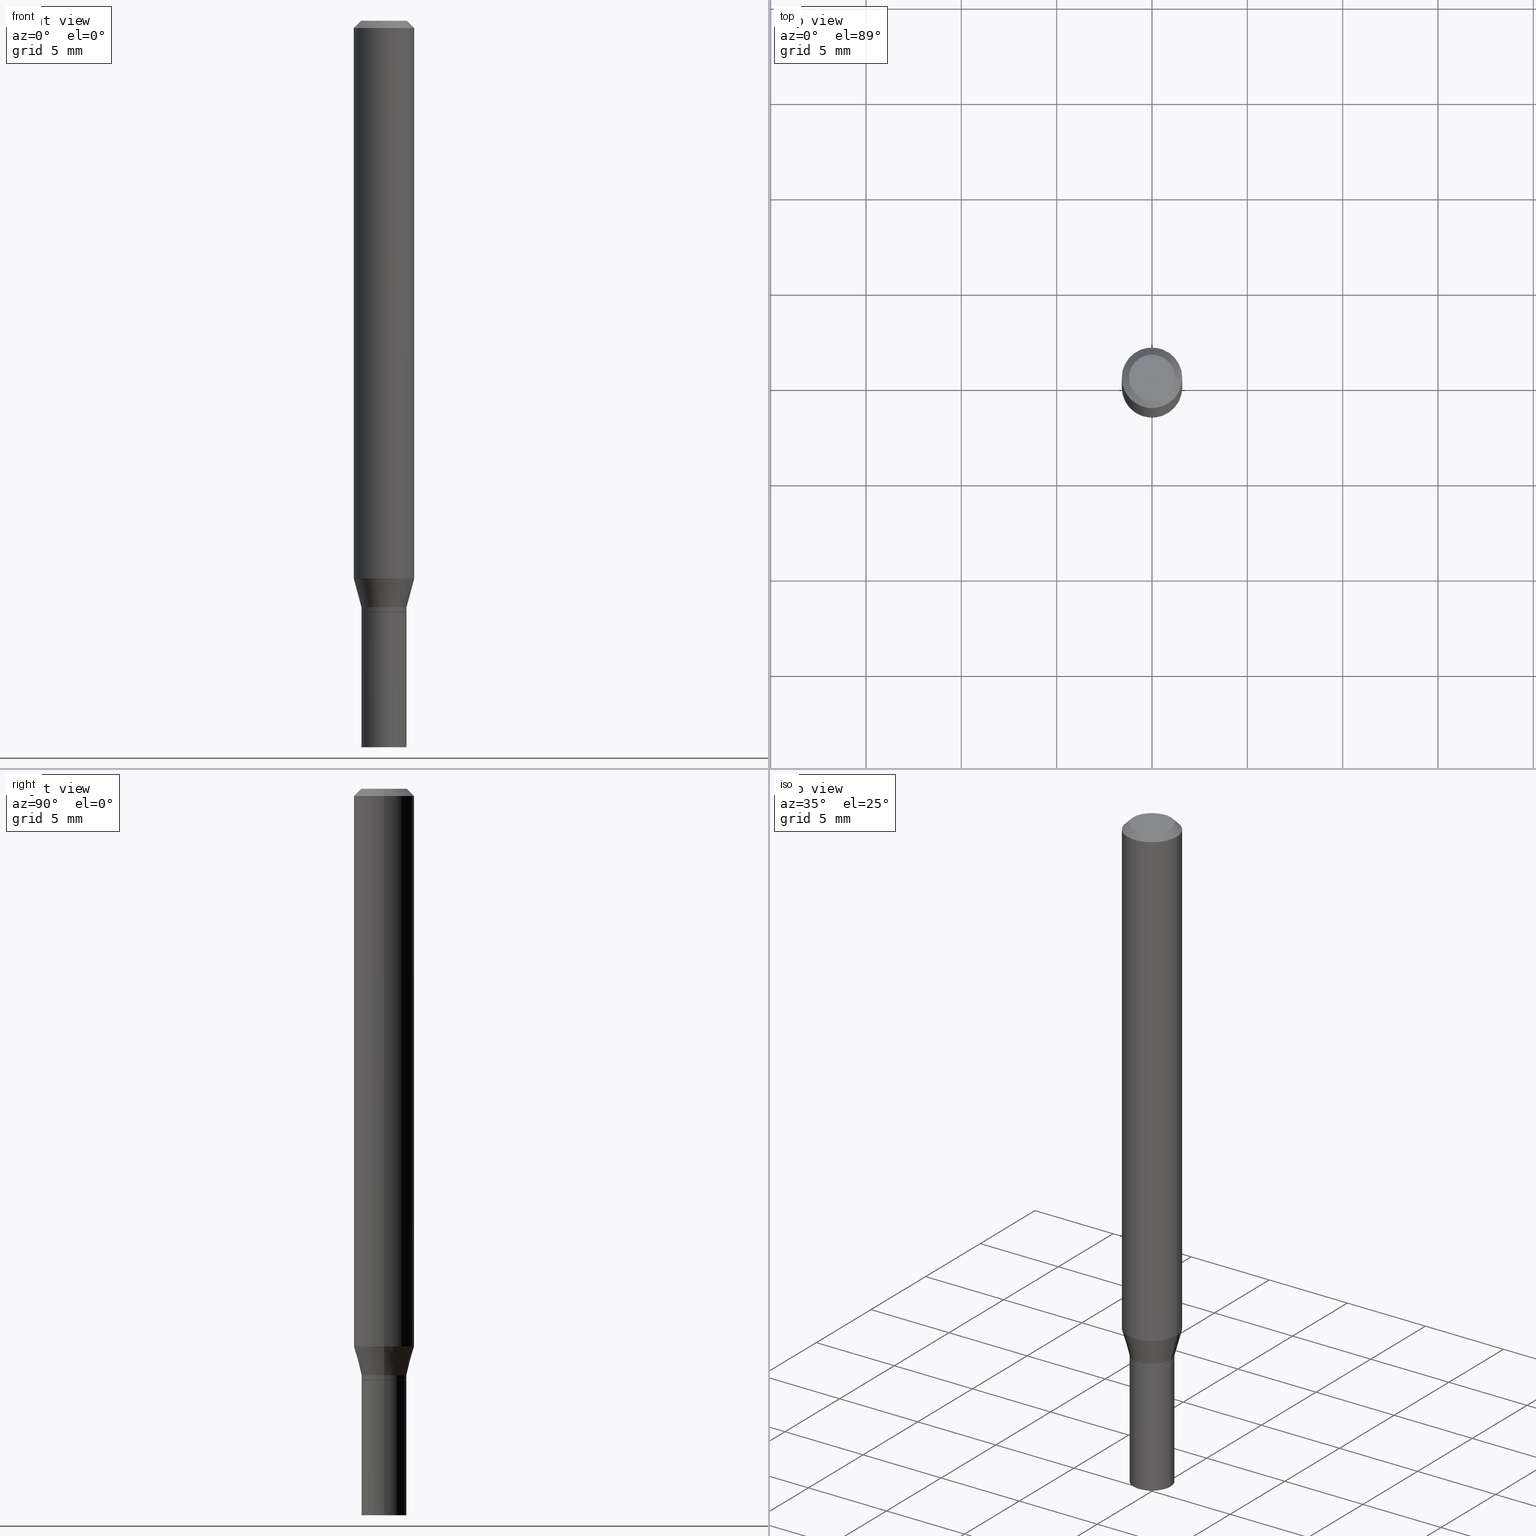
[diagram: canonical four-view strip — front | top / right | iso, engineering-drawing reading convention]
A machine part, canonical four-view strip (front | top / right | iso — engineering-drawing reading convention). The complete STEP part file that produces these views, byte-faithful:
ISO-10303-21;
HEADER;
FILE_DESCRIPTION (( 'STEP AP203' ),
    '1' );
FILE_NAME ('02463.STEP',
    '2024-03-18T20:44:53',
    ( '' ),
    ( '' ),
    'SwSTEP 2.0',
    'SolidWorks 2023',
    '' );
FILE_SCHEMA (( 'CONFIG_CONTROL_DESIGN' ));
ENDSEC;

DATA;
#1 = VERTEX_POINT ( 'NONE', #220 ) ;
#2 = CARTESIAN_POINT ( 'NONE',  ( -0.04649999999999999967, -4.419757989367653263E-15, -1.500000000000000222 ) ) ;
#3 = ORIENTED_EDGE ( 'NONE', *, *, #359, .F. ) ;
#4 = AXIS2_PLACEMENT_3D ( 'NONE', #325, #390, #215 ) ;
#5 = ADVANCED_FACE ( 'NONE', ( #158 ), #366, .T. ) ;
#6 = DIRECTION ( 'NONE',  ( -2.445468806185136597E-29, 3.491481338843145583E-15, 1.000000000000000000 ) ) ;
#7 = VERTEX_POINT ( 'NONE', #57 ) ;
#8 = PRODUCT_DEFINITION_SHAPE ( 'NONE', 'NONE',  #182 ) ;
#9 = DIRECTION ( 'NONE',  ( 1.000000000000000000, -6.982962677686269866E-15, 0.000000000000000000 ) ) ;
#10 = VERTEX_POINT ( 'NONE', #198 ) ;
#11 = ORIENTED_EDGE ( 'NONE', *, *, #346, .T. ) ;
#12 = AXIS2_PLACEMENT_3D ( 'NONE', #166, #412, #452 ) ;
#13 = SHAPE_DEFINITION_REPRESENTATION ( #8, #205 ) ;
#14 = CARTESIAN_POINT ( 'NONE',  ( 2.985917412352052273E-29, -4.263098714727481320E-15, -1.221000000000000085 ) ) ;
#15 = DIRECTION ( 'NONE',  ( 1.000000000000000000, -6.982962677686260400E-15, 0.000000000000000000 ) ) ;
#16 = PERSON_AND_ORGANIZATION ( #453, #50 ) ;
#17 = CARTESIAN_POINT ( 'NONE',  ( 3.247077645124412269E-16, 0.04649999999999573919, -1.221000000000000307 ) ) ;
#18 = EDGE_CURVE ( 'NONE', #288, #465, #244, .T. ) ;
#19 = DATE_AND_TIME ( #316, #67 ) ;
#20 = CARTESIAN_POINT ( 'NONE',  ( 0.04599999999999999922, -4.584314997901049810E-15, -1.221000000000000085 ) ) ;
#21 = DIRECTION ( 'NONE',  ( -2.445468806185136877E-29, 3.491481338843145188E-15, 1.000000000000000000 ) ) ;
#22 = CARTESIAN_POINT ( 'NONE',  ( 3.668203209277704895E-29, -5.237222008264718177E-15, -1.500000000000000222 ) ) ;
#23 = EDGE_CURVE ( 'NONE', #461, #1, #232, .T. ) ;
#24 = AXIS2_PLACEMENT_3D ( 'NONE', #163, #319, #377 ) ;
#25 = AXIS2_PLACEMENT_3D ( 'NONE', #78, #6, #266 ) ;
#26 = PLANE ( 'NONE',  #150 ) ;
#27 = DIRECTION ( 'NONE',  ( 2.438088387897960049E-29, -3.491481338843145188E-15, -1.000000000000000000 ) ) ;
#28 = EDGE_LOOP ( 'NONE', ( #230, #108, #271, #269 ) ) ;
#29 = CARTESIAN_POINT ( 'NONE',  ( -0.04599999999999999922, -3.936249056277835733E-15, -1.221000000000000085 ) ) ;
#30 = DIRECTION ( 'NONE',  ( -2.445468806185136597E-29, 3.491481338843145583E-15, 1.000000000000000000 ) ) ;
#31 = VECTOR ( 'NONE', #275, 39.37007874015748143 ) ;
#32 = VERTEX_POINT ( 'NONE', #279 ) ;
#33 = DIRECTION ( 'NONE',  ( -2.445468806185136877E-29, 3.491481338843145188E-15, 1.000000000000000000 ) ) ;
#34 = ORIENTED_EDGE ( 'NONE', *, *, #245, .F. ) ;
#35 = DIMENSIONAL_EXPONENTS ( 1.000000000000000000, 0.000000000000000000, 0.000000000000000000, 0.000000000000000000, 0.000000000000000000, 0.000000000000000000, 0.000000000000000000 ) ;
#36 = ORIENTED_EDGE ( 'NONE', *, *, #386, .F. ) ;
#37 = EDGE_CURVE ( 'NONE', #259, #157, #126, .T. ) ;
#38 = EDGE_LOOP ( 'NONE', ( #46, #337, #96, #120 ) ) ;
#39 = AXIS2_PLACEMENT_3D ( 'NONE', #143, #384, #295 ) ;
#40 = AXIS2_PLACEMENT_3D ( 'NONE', #287, #68, #213 ) ;
#41 = UNCERTAINTY_MEASURE_WITH_UNIT (LENGTH_MEASURE( 1.000000000000000082E-05 ), #119, 'distance_accuracy_value', 'NONE');
#42 = CARTESIAN_POINT ( 'NONE',  ( -0.04749999999999999362, 3.578768372314211985E-16, 8.673617379884694910E-17 ) ) ;
#43 = EDGE_LOOP ( 'NONE', ( #185, #82 ) ) ;
#44 = EDGE_CURVE ( 'NONE', #396, #7, #315, .T. ) ;
#45 = LINE ( 'NONE', #306, #350 ) ;
#46 = ORIENTED_EDGE ( 'NONE', *, *, #245, .T. ) ;
#47 = DATE_AND_TIME ( #313, #409 ) ;
#48 = ORIENTED_EDGE ( 'NONE', *, *, #221, .T. ) ;
#49 = AXIS2_PLACEMENT_3D ( 'NONE', #253, #180, #66 ) ;
#50 = ORGANIZATION ( 'UNSPECIFIED', 'UNSPECIFIED', '' ) ;
#51 = COORDINATED_UNIVERSAL_TIME_OFFSET ( 5, 0, .BEHIND. ) ;
#52 = FACE_OUTER_BOUND ( 'NONE', #301, .T. ) ;
#53 = DIRECTION ( 'NONE',  ( 0.000000000000000000, 0.000000000000000000, 1.000000000000000000 ) ) ;
#54 = CARTESIAN_POINT ( 'NONE',  ( 0.04649999999999999967, -3.247077645124114474E-16, 2.267422200745110326E-30 ) ) ;
#55 = ADVANCED_FACE ( 'NONE', ( #443 ), #463, .T. ) ;
#56 = PERSON_AND_ORGANIZATION ( #453, #50 ) ;
#57 = CARTESIAN_POINT ( 'NONE',  ( -0.06250000000000000000, -1.591945764858856353E-15, -0.01499999999999999944 ) ) ;
#58 = CONICAL_SURFACE ( 'NONE', #39, 0.06250000000000000000, 0.7853981633974456145 ) ;
#59 = SECURITY_CLASSIFICATION ( '', '', #404 ) ;
#60 = DIRECTION ( 'NONE',  ( -2.445468806185136597E-29, 3.491481338843145583E-15, 1.000000000000000000 ) ) ;
#61 = EDGE_CURVE ( 'NONE', #10, #303, #437, .T. ) ;
#62 = CARTESIAN_POINT ( 'NONE',  ( 0.000000000000000000, 0.000000000000000000, 0.000000000000000000 ) ) ;
#63 = CARTESIAN_POINT ( 'NONE',  ( 2.961462724290200728E-29, -4.228183901339049671E-15, -1.211000000000000076 ) ) ;
#64 = ORIENTED_EDGE ( 'NONE', *, *, #386, .T. ) ;
#65 = CIRCLE ( 'NONE', #343, 0.06250000000000000000 ) ;
#66 = DIRECTION ( 'NONE',  ( 1.000000000000000000, -6.982962677686267499E-15, 4.876176775795936353E-29 ) ) ;
#67 = LOCAL_TIME ( 16, 44, 53.00000000000000000, #309 ) ;
#68 = DIRECTION ( 'NONE',  ( -2.445468806185136597E-29, 3.491481338843145583E-15, 1.000000000000000000 ) ) ;
#69 = DIRECTION ( 'NONE',  ( 0.7071067811865454633, -7.319954787623246579E-15, -0.7071067811865493491 ) ) ;
#70 = LINE ( 'NONE', #397, #181 ) ;
#71 = CLOSED_SHELL ( 'NONE', ( #284, #194, #5, #189 ) ) ;
#72 = CIRCLE ( 'NONE', #12, 0.06250000000000000000 ) ;
#73 = EDGE_CURVE ( 'NONE', #430, #428, #265, .T. ) ;
#74 = CARTESIAN_POINT ( 'NONE',  ( -0.04649999999999999967, 3.304023721284465841E-16, -2.287304816968531530E-30 ) ) ;
#75 = ORIENTED_EDGE ( 'NONE', *, *, #260, .T. ) ;
#76 = CARTESIAN_POINT ( 'NONE',  ( 0.04599999999999999922, -4.584314997901049810E-15, -1.221000000000000085 ) ) ;
#77 = ORIENTED_EDGE ( 'NONE', *, *, #37, .F. ) ;
#78 = CARTESIAN_POINT ( 'NONE',  ( 2.985917412352052273E-29, -4.263098714727481320E-15, -1.221000000000000085 ) ) ;
#79 = ORIENTED_EDGE ( 'NONE', *, *, #23, .F. ) ;
#80 = ORIENTED_EDGE ( 'NONE', *, *, #86, .T. ) ;
#81 = APPROVAL_ROLE ( '' ) ;
#82 = ORIENTED_EDGE ( 'NONE', *, *, #312, .F. ) ;
#83 = DATE_AND_TIME ( #407, #424 ) ;
#84 = DIRECTION ( 'NONE',  ( -2.445468806185136597E-29, 3.491481338843145583E-15, 1.000000000000000000 ) ) ;
#85 = DATE_AND_TIME ( #342, #109 ) ;
#86 = EDGE_CURVE ( 'NONE', #465, #178, #250, .T. ) ;
#87 = CARTESIAN_POINT ( 'NONE',  ( 2.815436902962077376E-29, -4.019697729335190464E-15, -1.151287187078898322 ) ) ;
#88 = APPLICATION_PROTOCOL_DEFINITION ( 'international standard', 'config_control_design', 1994, #154 ) ;
#89 = DIRECTION ( 'NONE',  ( -2.445468806185136597E-29, 3.491481338843145583E-15, 1.000000000000000000 ) ) ;
#90 = CARTESIAN_POINT ( 'NONE',  ( 0.000000000000000000, 0.000000000000000000, 0.000000000000000000 ) ) ;
#91 = DIRECTION ( 'NONE',  ( 1.000000000000000000, -6.982962677686260400E-15, 0.000000000000000000 ) ) ;
#92 = EDGE_CURVE ( 'NONE', #461, #430, #206, .T. ) ;
#93 = AXIS2_PLACEMENT_3D ( 'NONE', #300, #187, #429 ) ;
#94 = DIRECTION ( 'NONE',  ( 1.000000000000000000, -6.982962677686269866E-15, 0.000000000000000000 ) ) ;
#95 = DIRECTION ( 'NONE',  ( -2.438088387897960049E-29, 3.491481338843145188E-15, 1.000000000000000000 ) ) ;
#96 = ORIENTED_EDGE ( 'NONE', *, *, #145, .F. ) ;
#97 = PLANE ( 'NONE',  #251 ) ;
#98 = VECTOR ( 'NONE', #69, 39.37007874015748854 ) ;
#99 = APPROVAL_PERSON_ORGANIZATION ( #56, #457, #128 ) ;
#100 = FACE_OUTER_BOUND ( 'NONE', #217, .T. ) ;
#101 = ADVANCED_FACE ( 'NONE', ( #52 ), #161, .T. ) ;
#102 = CARTESIAN_POINT ( 'NONE',  ( 3.668203209277704895E-29, -5.237222008264718177E-15, -1.500000000000000222 ) ) ;
#103 = DIRECTION ( 'NONE',  ( -1.000000000000000000, 6.982962677686265922E-15, -4.876176775795935793E-29 ) ) ;
#104 = ORIENTED_EDGE ( 'NONE', *, *, #18, .T. ) ;
#105 = EDGE_CURVE ( 'NONE', #7, #32, #72, .T. ) ;
#106 = DIRECTION ( 'NONE',  ( -2.445468806185136877E-29, 3.491481338843145188E-15, 1.000000000000000000 ) ) ;
#107 = AXIS2_PLACEMENT_3D ( 'NONE', #427, #95, #425 ) ;
#108 = ORIENTED_EDGE ( 'NONE', *, *, #278, .T. ) ;
#109 = LOCAL_TIME ( 16, 44, 53.00000000000000000, #413 ) ;
#110 = CARTESIAN_POINT ( 'NONE',  ( 0.000000000000000000, 0.000000000000000000, 0.000000000000000000 ) ) ;
#111 = ORIENTED_EDGE ( 'NONE', *, *, #312, .T. ) ;
#112 =( LENGTH_UNIT ( ) NAMED_UNIT ( * ) SI_UNIT ( $, .METRE. ) );
#113 = ORIENTED_EDGE ( 'NONE', *, *, #270, .F. ) ;
#114 = DIRECTION ( 'NONE',  ( -2.445468806185136597E-29, 3.491481338843145583E-15, 1.000000000000000000 ) ) ;
#115 = ORIENTED_EDGE ( 'NONE', *, *, #260, .F. ) ;
#116 = AXIS2_PLACEMENT_3D ( 'NONE', #340, #434, #9 ) ;
#117 = PRODUCT_DEFINITION_FORMATION_WITH_SPECIFIED_SOURCE ( 'ANY', '', #356, .NOT_KNOWN. ) ;
#118 = PRODUCT_RELATED_PRODUCT_CATEGORY ( 'detail', '', ( #356 ) ) ;
#119 =( CONVERSION_BASED_UNIT ( 'INCH', #156 ) LENGTH_UNIT ( ) NAMED_UNIT ( #35 ) );
#120 = ORIENTED_EDGE ( 'NONE', *, *, #346, .F. ) ;
#121 = DIRECTION ( 'NONE',  ( -2.445468806185136597E-29, 3.491481338843145583E-15, 1.000000000000000000 ) ) ;
#122 = EDGE_CURVE ( 'NONE', #157, #32, #311, .T. ) ;
#123 = PERSON_AND_ORGANIZATION_ROLE ( 'classification_officer' ) ;
#124 = DIRECTION ( 'NONE',  ( 1.000000000000000000, -6.982962677686267499E-15, 4.876176775795936353E-29 ) ) ;
#125 = CC_DESIGN_PERSON_AND_ORGANIZATION_ASSIGNMENT ( #201, #123, ( #59 ) ) ;
#126 = CIRCLE ( 'NONE', #24, 0.06250000000000000000 ) ;
#127 = AXIS2_PLACEMENT_3D ( 'NONE', #17, #246, #323 ) ;
#128 = APPROVAL_ROLE ( '' ) ;
#129 = PLANE ( 'NONE',  #127 ) ;
#130 = PERSON_AND_ORGANIZATION ( #453, #50 ) ;
#131 = CARTESIAN_POINT ( 'NONE',  ( -0.06250000000000000000, 3.840629472727444916E-16, -0.01499999999999999944 ) ) ;
#132 = EDGE_CURVE ( 'NONE', #178, #465, #141, .T. ) ;
#133 = CARTESIAN_POINT ( 'NONE',  ( 0.000000000000000000, 0.000000000000000000, 0.000000000000000000 ) ) ;
#134 = CONICAL_SURFACE ( 'NONE', #283, 0.04650000000000006906, 0.2617993877991490193 ) ;
#135 = DIRECTION ( 'NONE',  ( 1.000000000000000000, -6.982962677686265922E-15, 4.876176775795935793E-29 ) ) ;
#136 = ORIENTED_EDGE ( 'NONE', *, *, #376, .F. ) ;
#137 = CYLINDRICAL_SURFACE ( 'NONE', #375, 0.06250000000000000000 ) ;
#138 = ORIENTED_EDGE ( 'NONE', *, *, #61, .F. ) ;
#139 = FACE_OUTER_BOUND ( 'NONE', #43, .T. ) ;
#140 = ORIENTED_EDGE ( 'NONE', *, *, #352, .F. ) ;
#141 = CIRCLE ( 'NONE', #446, 0.04649999999999999967 ) ;
#142 = DIRECTION ( 'NONE',  ( -2.445468806185136597E-29, 3.491481338843145583E-15, 1.000000000000000000 ) ) ;
#143 = CARTESIAN_POINT ( 'NONE',  ( 3.668203209277705088E-31, -5.237222008264718399E-17, -0.01499999999999999944 ) ) ;
#144 = EDGE_LOOP ( 'NONE', ( #140, #373, #11, #77 ) ) ;
#145 = EDGE_CURVE ( 'NONE', #157, #259, #65, .T. ) ;
#146 = CARTESIAN_POINT ( 'NONE',  ( 0.04649999999999999967, -4.587806479239892817E-15, -1.221000000000000085 ) ) ;
#147 = ORIENTED_EDGE ( 'NONE', *, *, #145, .T. ) ;
#148 = CARTESIAN_POINT ( 'NONE',  ( -0.04650000000000006906, -3.897781529210603185E-15, -1.211000000000000076 ) ) ;
#149 = AXIS2_PLACEMENT_3D ( 'NONE', #410, #281, #195 ) ;
#150 = AXIS2_PLACEMENT_3D ( 'NONE', #389, #27, #103 ) ;
#151 = ORIENTED_EDGE ( 'NONE', *, *, #73, .T. ) ;
#152 = CC_DESIGN_APPROVAL ( #457, ( #59 ) ) ;
#153 = FACE_OUTER_BOUND ( 'NONE', #402, .T. ) ;
#154 = APPLICATION_CONTEXT ( 'configuration controlled 3d designs of mechanical parts and assemblies' ) ;
#155 = ORIENTED_EDGE ( 'NONE', *, *, #214, .T. ) ;
#156 = LENGTH_MEASURE_WITH_UNIT ( LENGTH_MEASURE( 0.02539999999999999897 ), #112 );
#157 = VERTEX_POINT ( 'NONE', #236 ) ;
#158 = FACE_OUTER_BOUND ( 'NONE', #358, .T. ) ;
#159 = DIRECTION ( 'NONE',  ( 1.000000000000000000, -6.982962677686269866E-15, 0.000000000000000000 ) ) ;
#160 = ADVANCED_FACE ( 'NONE', ( #416 ), #134, .T. ) ;
#161 = CYLINDRICAL_SURFACE ( 'NONE', #400, 0.06250000000000000000 ) ;
#162 = PERSON_AND_ORGANIZATION_ROLE ( 'creator' ) ;
#163 = CARTESIAN_POINT ( 'NONE',  ( 2.815436902962077376E-29, -4.019697729335190464E-15, -1.151287187078898322 ) ) ;
#164 = CIRCLE ( 'NONE', #423, 0.06250000000000000000 ) ;
#165 = COORDINATED_UNIVERSAL_TIME_OFFSET ( 5, 0, .BEHIND. ) ;
#166 = CARTESIAN_POINT ( 'NONE',  ( 3.668203209277705088E-31, -5.237222008264718399E-17, -0.01499999999999999944 ) ) ;
#167 = APPROVAL_DATE_TIME ( #83, #294 ) ;
#168 = CARTESIAN_POINT ( 'NONE',  ( 2.985917412352052273E-29, -4.263098714727481320E-15, -1.221000000000000085 ) ) ;
#169 = FACE_OUTER_BOUND ( 'NONE', #192, .T. ) ;
#170 = AXIS2_PLACEMENT_3D ( 'NONE', #168, #310, #94 ) ;
#171 = CIRCLE ( 'NONE', #93, 0.04650000000000006212 ) ;
#172 = LOCAL_TIME ( 16, 44, 53.00000000000000000, #51 ) ;
#173 = CARTESIAN_POINT ( 'NONE',  ( 0.04650000000000006906, -4.552891665851461956E-15, -1.211000000000000076 ) ) ;
#174 = EDGE_LOOP ( 'NONE', ( #80, #290 ) ) ;
#175 = ADVANCED_FACE ( 'NONE', ( #273 ), #408, .T. ) ;
#176 = CC_DESIGN_PERSON_AND_ORGANIZATION_ASSIGNMENT ( #16, #162, ( #182 ) ) ;
#177 = DIRECTION ( 'NONE',  ( -2.445468806185136597E-29, 3.491481338843145583E-15, 1.000000000000000000 ) ) ;
#178 = VERTEX_POINT ( 'NONE', #200 ) ;
#179 = APPLICATION_CONTEXT ( 'configuration controlled 3d designs of mechanical parts and assemblies' ) ;
#180 = DIRECTION ( 'NONE',  ( -2.445468806185136597E-29, 3.491481338843145583E-15, 1.000000000000000000 ) ) ;
#181 = VECTOR ( 'NONE', #106, 39.37007874015748143 ) ;
#182 = PRODUCT_DEFINITION ( 'UNKNOWN', '', #117, #239 ) ;
#183 = DIRECTION ( 'NONE',  ( 1.000000000000000000, -6.982962677686266711E-15, 4.876176775795935793E-29 ) ) ;
#184 = DIRECTION ( 'NONE',  ( -0.2588190451025203509, 5.211531920934543942E-15, 0.9659258262890684232 ) ) ;
#185 = ORIENTED_EDGE ( 'NONE', *, *, #221, .F. ) ;
#186 = CLOSED_SHELL ( 'NONE', ( #304, #175, #229, #101, #403, #160, #320, #55, #299, #332, #456, #399 ) ) ;
#187 = DIRECTION ( 'NONE',  ( -2.445468806185136597E-29, 3.491481338843145583E-15, 1.000000000000000000 ) ) ;
#188 = ORIENTED_EDGE ( 'NONE', *, *, #44, .F. ) ;
#189 = ADVANCED_FACE ( 'NONE', ( #348 ), #129, .F. ) ;
#190 = DIRECTION ( 'NONE',  ( -2.445468806185136597E-29, 3.491481338843145583E-15, 1.000000000000000000 ) ) ;
#191 = EDGE_LOOP ( 'NONE', ( #264, #298, #364, #394 ) ) ;
#192 = EDGE_LOOP ( 'NONE', ( #151, #398, #34, #369 ) ) ;
#193 = APPROVAL_STATUS ( 'not_yet_approved' ) ;
#194 = ADVANCED_FACE ( 'NONE', ( #139 ), #209, .F. ) ;
#195 = DIRECTION ( 'NONE',  ( 1.000000000000000000, -6.982962677686260400E-15, 0.000000000000000000 ) ) ;
#196 = CIRCLE ( 'NONE', #381, 0.04650000000000006906 ) ;
#197 = COORDINATED_UNIVERSAL_TIME_OFFSET ( 5, 0, .BEHIND. ) ;
#198 = CARTESIAN_POINT ( 'NONE',  ( -0.04650000000000006906, -3.736695024347865517E-15, -1.211000000000000076 ) ) ;
#199 = CALENDAR_DATE ( 2024, 18, 3 ) ;
#200 = CARTESIAN_POINT ( 'NONE',  ( -0.04649999999999999967, -4.419757989367653263E-15, -1.221000000000000085 ) ) ;
#201 = PERSON_AND_ORGANIZATION ( #453, #50 ) ;
#202 = CARTESIAN_POINT ( 'NONE',  ( 3.668203209277705088E-31, -5.237222008264718399E-17, -0.01499999999999999944 ) ) ;
#203 = VECTOR ( 'NONE', #21, 39.37007874015748143 ) ;
#204 = CONICAL_SURFACE ( 'NONE', #116, 0.04650000000000006906, 0.2617993877991490193 ) ;
#205 = ADVANCED_BREP_SHAPE_REPRESENTATION ( '02463', ( #370, #226, #268 ), #224 ) ;
#206 = LINE ( 'NONE', #20, #222 ) ;
#207 = CC_DESIGN_PERSON_AND_ORGANIZATION_ASSIGNMENT ( #280, #349, ( #117 ) ) ;
#208 = DIRECTION ( 'NONE',  ( -2.438088387897960049E-29, 3.491481338843145188E-15, 1.000000000000000000 ) ) ;
#209 = PLANE ( 'NONE',  #107 ) ;
#210 = AXIS2_PLACEMENT_3D ( 'NONE', #22, #177, #458 ) ;
#211 = CARTESIAN_POINT ( 'NONE',  ( 0.04649999999999999967, -5.561929772777129673E-15, -1.500000000000000222 ) ) ;
#212 = ORIENTED_EDGE ( 'NONE', *, *, #419, .T. ) ;
#213 = DIRECTION ( 'NONE',  ( 1.000000000000000000, -6.982962677686266711E-15, 4.876176775795935793E-29 ) ) ;
#214 = EDGE_CURVE ( 'NONE', #396, #324, #392, .T. ) ;
#215 = DIRECTION ( 'NONE',  ( 1.000000000000000000, -6.982962677686267499E-15, 4.884662768193073002E-29 ) ) ;
#216 = CARTESIAN_POINT ( 'NONE',  ( 2.985917412352052273E-29, -4.263098714727481320E-15, -1.221000000000000085 ) ) ;
#217 = EDGE_LOOP ( 'NONE', ( #48, #329, #331, #401 ) ) ;
#218 = DIRECTION ( 'NONE',  ( 1.000000000000000000, -6.982962677686269866E-15, 0.000000000000000000 ) ) ;
#219 = ORIENTED_EDGE ( 'NONE', *, *, #326, .T. ) ;
#220 = CARTESIAN_POINT ( 'NONE',  ( -0.04599999999999999922, -3.933599829103724532E-15, -1.221000000000000085 ) ) ;
#221 = EDGE_CURVE ( 'NONE', #288, #339, #454, .T. ) ;
#222 = VECTOR ( 'NONE', #353, 39.37007874015748143 ) ;
#223 = DIRECTION ( 'NONE',  ( 1.000000000000000000, -6.982962677686266711E-15, 4.876176775795935793E-29 ) ) ;
#224 =( GEOMETRIC_REPRESENTATION_CONTEXT ( 3 ) GLOBAL_UNCERTAINTY_ASSIGNED_CONTEXT ( ( #41 ) ) GLOBAL_UNIT_ASSIGNED_CONTEXT ( ( #119, #227, #263 ) ) REPRESENTATION_CONTEXT ( 'NONE', 'WORKASPACE' ) );
#225 = ORIENTED_EDGE ( 'NONE', *, *, #326, .F. ) ;
#226 = MANIFOLD_SOLID_BREP ( 'Body-Move/Copy2[2]', #186 ) ;
#227 =( NAMED_UNIT ( * ) PLANE_ANGLE_UNIT ( ) SI_UNIT ( $, .RADIAN. ) );
#228 = ORIENTED_EDGE ( 'NONE', *, *, #105, .T. ) ;
#229 = ADVANCED_FACE ( 'NONE', ( #254 ), #58, .T. ) ;
#230 = ORIENTED_EDGE ( 'NONE', *, *, #23, .T. ) ;
#231 = DATE_TIME_ROLE ( 'classification_date' ) ;
#232 = CIRCLE ( 'NONE', #170, 0.04599999999999999922 ) ;
#233 = DIRECTION ( 'NONE',  ( -2.445468806185136597E-29, 3.491481338843145583E-15, 1.000000000000000000 ) ) ;
#234 = CIRCLE ( 'NONE', #25, 0.04599999999999999922 ) ;
#235 = APPROVAL_PERSON_ORGANIZATION ( #448, #294, #81 ) ;
#236 = CARTESIAN_POINT ( 'NONE',  ( 0.06250000000000000000, -4.456132896690582134E-15, -1.151287187078898322 ) ) ;
#237 = APPROVAL_ROLE ( '' ) ;
#238 = DIRECTION ( 'NONE',  ( 1.000000000000000000, -6.982962677686269866E-15, 0.000000000000000000 ) ) ;
#239 = DESIGN_CONTEXT ( 'detailed design', #154, 'design' ) ;
#240 = DATE_AND_TIME ( #199, #172 ) ;
#241 = CARTESIAN_POINT ( 'NONE',  ( 2.961462724290200728E-29, -4.228183901339049671E-15, -1.211000000000000076 ) ) ;
#242 = VECTOR ( 'NONE', #33, 39.37007874015748143 ) ;
#243 = CC_DESIGN_APPROVAL ( #406, ( #182 ) ) ;
#244 = LINE ( 'NONE', #54, #203 ) ;
#245 = EDGE_CURVE ( 'NONE', #303, #10, #196, .T. ) ;
#246 = DIRECTION ( 'NONE',  ( 2.438088387897960049E-29, -3.491481338843145188E-15, -1.000000000000000000 ) ) ;
#247 = CC_DESIGN_DATE_AND_TIME_ASSIGNMENT ( #19, #231, ( #59 ) ) ;
#248 = ORIENTED_EDGE ( 'NONE', *, *, #419, .F. ) ;
#249 = DIRECTION ( 'NONE',  ( -0.7071067811865656694, 7.493145998870420424E-15, 0.7071067811865294761 ) ) ;
#250 = CIRCLE ( 'NONE', #422, 0.04649999999999999967 ) ;
#251 = AXIS2_PLACEMENT_3D ( 'NONE', #328, #208, #135 ) ;
#252 = VECTOR ( 'NONE', #249, 39.37007874015748143 ) ;
#253 = CARTESIAN_POINT ( 'NONE',  ( 0.000000000000000000, 0.000000000000000000, 0.000000000000000000 ) ) ;
#254 = FACE_OUTER_BOUND ( 'NONE', #305, .T. ) ;
#255 = CARTESIAN_POINT ( 'NONE',  ( -0.06250000000000000000, -3.575608519485128637E-15, -1.151287187078898322 ) ) ;
#256 = EDGE_LOOP ( 'NONE', ( #79, #248 ) ) ;
#257 = CIRCLE ( 'NONE', #4, 0.04749999999999999362 ) ;
#258 = DIRECTION ( 'NONE',  ( 1.000000000000000000, -6.982962677686266711E-15, 0.000000000000000000 ) ) ;
#259 = VERTEX_POINT ( 'NONE', #255 ) ;
#260 = EDGE_CURVE ( 'NONE', #324, #396, #257, .T. ) ;
#261 = CARTESIAN_POINT ( 'NONE',  ( -0.04650000000000006212, -3.930950601929612542E-15, -1.220500000000000140 ) ) ;
#262 = ORIENTED_EDGE ( 'NONE', *, *, #362, .T. ) ;
#263 =( NAMED_UNIT ( * ) SI_UNIT ( $, .STERADIAN. ) SOLID_ANGLE_UNIT ( ) );
#264 = ORIENTED_EDGE ( 'NONE', *, *, #440, .F. ) ;
#265 = CIRCLE ( 'NONE', #149, 0.04650000000000006212 ) ;
#266 = DIRECTION ( 'NONE',  ( 1.000000000000000000, -6.982962677686269866E-15, 0.000000000000000000 ) ) ;
#267 = VECTOR ( 'NONE', #286, 39.37007874015748143 ) ;
#268 = AXIS2_PLACEMENT_3D ( 'NONE', #90, #53, #379 ) ;
#269 = ORIENTED_EDGE ( 'NONE', *, *, #92, .F. ) ;
#270 = EDGE_CURVE ( 'NONE', #428, #10, #357, .T. ) ;
#271 = ORIENTED_EDGE ( 'NONE', *, *, #73, .F. ) ;
#272 = MECHANICAL_CONTEXT ( 'NONE', #179, 'mechanical' ) ;
#273 = FACE_OUTER_BOUND ( 'NONE', #28, .T. ) ;
#274 = APPROVAL_DATE_TIME ( #85, #457 ) ;
#275 = DIRECTION ( 'NONE',  ( -2.445468806185136877E-29, 3.491481338843145188E-15, 1.000000000000000000 ) ) ;
#276 = CONICAL_SURFACE ( 'NONE', #438, 0.04599999999999999922, 0.7853981633974739252 ) ;
#277 = CC_DESIGN_SECURITY_CLASSIFICATION ( #59, ( #117 ) ) ;
#278 = EDGE_CURVE ( 'NONE', #1, #428, #462, .T. ) ;
#279 = CARTESIAN_POINT ( 'NONE',  ( 0.06250000000000000000, -4.888073874380388472E-16, -0.01499999999999999944 ) ) ;
#280 = PERSON_AND_ORGANIZATION ( #453, #50 ) ;
#281 = DIRECTION ( 'NONE',  ( -2.445468806185136597E-29, 3.491481338843145583E-15, 1.000000000000000000 ) ) ;
#282 = DIRECTION ( 'NONE',  ( 1.000000000000000000, -6.982962677686262766E-15, 0.000000000000000000 ) ) ;
#283 = AXIS2_PLACEMENT_3D ( 'NONE', #241, #380, #159 ) ;
#284 = ADVANCED_FACE ( 'NONE', ( #100 ), #361, .T. ) ;
#285 = CC_DESIGN_DATE_AND_TIME_ASSIGNMENT ( #47, #442, ( #182 ) ) ;
#286 = DIRECTION ( 'NONE',  ( -2.445468806185136877E-29, 3.491481338843145188E-15, 1.000000000000000000 ) ) ;
#287 = CARTESIAN_POINT ( 'NONE',  ( 0.000000000000000000, 0.000000000000000000, 0.000000000000000000 ) ) ;
#288 = VERTEX_POINT ( 'NONE', #211 ) ;
#289 = DIRECTION ( 'NONE',  ( 1.000000000000000000, -6.982962677686260400E-15, 0.000000000000000000 ) ) ;
#290 = ORIENTED_EDGE ( 'NONE', *, *, #132, .T. ) ;
#291 = AXIS2_PLACEMENT_3D ( 'NONE', #447, #233, #238 ) ;
#292 = AXIS2_PLACEMENT_3D ( 'NONE', #102, #360, #289 ) ;
#293 = CARTESIAN_POINT ( 'NONE',  ( 0.04749999999999999362, -4.035134999187577144E-16, 8.673617379885194112E-17 ) ) ;
#294 = APPROVAL ( #445, 'UNSPECIFIED' ) ;
#295 = DIRECTION ( 'NONE',  ( -1.000000000000000000, 6.982962677686266711E-15, 0.000000000000000000 ) ) ;
#296 = ORIENTED_EDGE ( 'NONE', *, *, #92, .T. ) ;
#297 = DIRECTION ( 'NONE',  ( -2.445468806185136877E-29, 3.491481338843145188E-15, 1.000000000000000000 ) ) ;
#298 = ORIENTED_EDGE ( 'NONE', *, *, #37, .T. ) ;
#299 = ADVANCED_FACE ( 'NONE', ( #355 ), #26, .F. ) ;
#300 = CARTESIAN_POINT ( 'NONE',  ( 2.984694677948959472E-29, -4.261352974058059816E-15, -1.220500000000000140 ) ) ;
#301 = EDGE_LOOP ( 'NONE', ( #147, #341, #36, #334 ) ) ;
#302 = LINE ( 'NONE', #148, #307 ) ;
#303 = VERTEX_POINT ( 'NONE', #173 ) ;
#304 = ADVANCED_FACE ( 'NONE', ( #169 ), #417, .T. ) ;
#305 = EDGE_LOOP ( 'NONE', ( #115, #219, #64, #188 ) ) ;
#306 = CARTESIAN_POINT ( 'NONE',  ( 0.04650000000000006906, -4.552891665851461956E-15, -1.211000000000000076 ) ) ;
#307 = VECTOR ( 'NONE', #184, 39.37007874015748143 ) ;
#308 = EDGE_LOOP ( 'NONE', ( #113, #439, #262, #138 ) ) ;
#309 = COORDINATED_UNIVERSAL_TIME_OFFSET ( 5, 0, .BEHIND. ) ;
#310 = DIRECTION ( 'NONE',  ( -2.445468806185136597E-29, 3.491481338843145583E-15, 1.000000000000000000 ) ) ;
#311 = LINE ( 'NONE', #344, #31 ) ;
#312 = EDGE_CURVE ( 'NONE', #339, #288, #388, .T. ) ;
#313 = CALENDAR_DATE ( 2024, 18, 3 ) ;
#314 = AXIS2_PLACEMENT_3D ( 'NONE', #405, #84, #378 ) ;
#315 = LINE ( 'NONE', #131, #444 ) ;
#316 = CALENDAR_DATE ( 2024, 18, 3 ) ;
#317 = DIRECTION ( 'NONE',  ( -2.445468806185136597E-29, 3.491481338843145583E-15, 1.000000000000000000 ) ) ;
#318 = PERSON_AND_ORGANIZATION ( #453, #50 ) ;
#319 = DIRECTION ( 'NONE',  ( -2.445468806185136597E-29, 3.491481338843145583E-15, 1.000000000000000000 ) ) ;
#320 = ADVANCED_FACE ( 'NONE', ( #460 ), #137, .T. ) ;
#321 = LINE ( 'NONE', #420, #98 ) ;
#322 = CC_DESIGN_APPROVAL ( #294, ( #117 ) ) ;
#323 = DIRECTION ( 'NONE',  ( -1.000000000000000000, 6.982962677686265922E-15, -4.876176775795935793E-29 ) ) ;
#324 = VERTEX_POINT ( 'NONE', #293 ) ;
#325 = CARTESIAN_POINT ( 'NONE',  ( -2.121106073929386760E-45, 3.028377322213383622E-31, 8.673617379884936499E-17 ) ) ;
#326 = EDGE_CURVE ( 'NONE', #324, #32, #321, .T. ) ;
#327 = DIRECTION ( 'NONE',  ( 1.000000000000000000, -6.982962677686269866E-15, 0.000000000000000000 ) ) ;
#328 = CARTESIAN_POINT ( 'NONE',  ( 2.985917412352052273E-29, -4.263098714727481320E-15, -1.221000000000000085 ) ) ;
#329 = ORIENTED_EDGE ( 'NONE', *, *, #359, .T. ) ;
#330 = APPLICATION_PROTOCOL_DEFINITION ( 'international standard', 'config_control_design', 1994, #179 ) ;
#331 = ORIENTED_EDGE ( 'NONE', *, *, #86, .F. ) ;
#332 = ADVANCED_FACE ( 'NONE', ( #455 ), #97, .F. ) ;
#333 = LINE ( 'NONE', #365, #242 ) ;
#334 = ORIENTED_EDGE ( 'NONE', *, *, #122, .F. ) ;
#335 = AXIS2_PLACEMENT_3D ( 'NONE', #382, #60, #124 ) ;
#336 = FACE_OUTER_BOUND ( 'NONE', #308, .T. ) ;
#337 = ORIENTED_EDGE ( 'NONE', *, *, #352, .T. ) ;
#338 = CYLINDRICAL_SURFACE ( 'NONE', #464, 0.04650000000000006906 ) ;
#339 = VERTEX_POINT ( 'NONE', #2 ) ;
#340 = CARTESIAN_POINT ( 'NONE',  ( 2.961462724290200728E-29, -4.228183901339049671E-15, -1.211000000000000076 ) ) ;
#341 = ORIENTED_EDGE ( 'NONE', *, *, #440, .T. ) ;
#342 = CALENDAR_DATE ( 2024, 18, 3 ) ;
#343 = AXIS2_PLACEMENT_3D ( 'NONE', #87, #121, #282 ) ;
#344 = CARTESIAN_POINT ( 'NONE',  ( 0.06250000000000000000, -4.364351673553916694E-16, 3.047610484872459871E-30 ) ) ;
#345 = DIRECTION ( 'NONE',  ( -0.7071067811865454633, 2.468850131082235761E-15, -0.7071067811865493491 ) ) ;
#346 = EDGE_CURVE ( 'NONE', #303, #157, #45, .T. ) ;
#347 = APPROVAL_DATE_TIME ( #240, #406 ) ;
#348 = FACE_OUTER_BOUND ( 'NONE', #174, .T. ) ;
#349 = PERSON_AND_ORGANIZATION_ROLE ( 'design_supplier' ) ;
#350 = VECTOR ( 'NONE', #368, 39.37007874015748143 ) ;
#351 = DIRECTION ( 'NONE',  ( 2.445468806185136597E-29, -3.491481338843145583E-15, -1.000000000000000000 ) ) ;
#352 = EDGE_CURVE ( 'NONE', #10, #259, #302, .T. ) ;
#353 = DIRECTION ( 'NONE',  ( 0.7071067811865656694, -2.468850131082446387E-15, 0.7071067811865294761 ) ) ;
#354 = DIRECTION ( 'NONE',  ( -2.445468806185136597E-29, 3.491481338843145583E-15, 1.000000000000000000 ) ) ;
#355 = FACE_OUTER_BOUND ( 'NONE', #436, .T. ) ;
#356 = PRODUCT ( '02463', '02463', '', ( #272 ) ) ;
#357 = LINE ( 'NONE', #385, #267 ) ;
#358 = EDGE_LOOP ( 'NONE', ( #3, #111, #104, #433 ) ) ;
#359 = EDGE_CURVE ( 'NONE', #339, #178, #391, .T. ) ;
#360 = DIRECTION ( 'NONE',  ( -2.445468806185136597E-29, 3.491481338843145583E-15, 1.000000000000000000 ) ) ;
#361 = CYLINDRICAL_SURFACE ( 'NONE', #49, 0.04649999999999999967 ) ;
#362 = EDGE_CURVE ( 'NONE', #430, #303, #333, .T. ) ;
#363 = DIRECTION ( 'NONE',  ( -2.445468806185136597E-29, 3.491481338843145583E-15, 1.000000000000000000 ) ) ;
#364 = ORIENTED_EDGE ( 'NONE', *, *, #122, .T. ) ;
#365 = CARTESIAN_POINT ( 'NONE',  ( 0.04650000000000006906, -3.247077645124118911E-16, 2.267422200745113479E-30 ) ) ;
#366 = CYLINDRICAL_SURFACE ( 'NONE', #335, 0.04649999999999999967 ) ;
#367 = VECTOR ( 'NONE', #297, 39.37007874015748143 ) ;
#368 = DIRECTION ( 'NONE',  ( 0.2588190451025203509, 1.565188264969630053E-15, 0.9659258262890684232 ) ) ;
#369 = ORIENTED_EDGE ( 'NONE', *, *, #362, .F. ) ;
#370 = MANIFOLD_SOLID_BREP ( 'Body-Move/Copy2[1]', #71 ) ;
#371 = ORIENTED_EDGE ( 'NONE', *, *, #214, .F. ) ;
#372 = PERSON_AND_ORGANIZATION_ROLE ( 'design_owner' ) ;
#373 = ORIENTED_EDGE ( 'NONE', *, *, #61, .T. ) ;
#374 = APPROVAL_STATUS ( 'not_yet_approved' ) ;
#375 = AXIS2_PLACEMENT_3D ( 'NONE', #62, #142, #183 ) ;
#376 = EDGE_CURVE ( 'NONE', #428, #430, #171, .T. ) ;
#377 = DIRECTION ( 'NONE',  ( 1.000000000000000000, -6.982962677686262766E-15, 0.000000000000000000 ) ) ;
#378 = DIRECTION ( 'NONE',  ( 1.000000000000000000, -6.982962677686269866E-15, 0.000000000000000000 ) ) ;
#379 = DIRECTION ( 'NONE',  ( 1.000000000000000000, 0.000000000000000000, 0.000000000000000000 ) ) ;
#380 = DIRECTION ( 'NONE',  ( -2.445468806185136597E-29, 3.491481338843145583E-15, 1.000000000000000000 ) ) ;
#381 = AXIS2_PLACEMENT_3D ( 'NONE', #63, #354, #327 ) ;
#382 = CARTESIAN_POINT ( 'NONE',  ( 0.000000000000000000, 0.000000000000000000, 0.000000000000000000 ) ) ;
#383 = DIRECTION ( 'NONE',  ( -1.000000000000000000, 6.982962677686266711E-15, 0.000000000000000000 ) ) ;
#384 = DIRECTION ( 'NONE',  ( 2.445468806185136597E-29, -3.491481338843145583E-15, -1.000000000000000000 ) ) ;
#385 = CARTESIAN_POINT ( 'NONE',  ( -0.04650000000000006906, 3.304023721284470771E-16, -2.287304816968534683E-30 ) ) ;
#386 = EDGE_CURVE ( 'NONE', #32, #7, #164, .T. ) ;
#387 = AXIS2_PLACEMENT_3D ( 'NONE', #202, #351, #383 ) ;
#388 = CIRCLE ( 'NONE', #210, 0.04649999999999999967 ) ;
#389 = CARTESIAN_POINT ( 'NONE',  ( 3.316907271900976096E-16, 0.04749999999999999362, -1.224772766956247324E-16 ) ) ;
#390 = DIRECTION ( 'NONE',  ( -2.445468806185136597E-29, 3.491481338843145583E-15, 1.000000000000000000 ) ) ;
#391 = LINE ( 'NONE', #74, #367 ) ;
#392 = CIRCLE ( 'NONE', #415, 0.04749999999999999362 ) ;
#393 = FACE_OUTER_BOUND ( 'NONE', #38, .T. ) ;
#394 = ORIENTED_EDGE ( 'NONE', *, *, #105, .F. ) ;
#395 = CARTESIAN_POINT ( 'NONE',  ( 0.04650000000000006212, -4.586060738570472102E-15, -1.220500000000000140 ) ) ;
#396 = VERTEX_POINT ( 'NONE', #42 ) ;
#397 = CARTESIAN_POINT ( 'NONE',  ( -0.06250000000000000000, 4.440892098500626162E-16, -3.074334431409316114E-30 ) ) ;
#398 = ORIENTED_EDGE ( 'NONE', *, *, #270, .T. ) ;
#399 = ADVANCED_FACE ( 'NONE', ( #336 ), #338, .T. ) ;
#400 = AXIS2_PLACEMENT_3D ( 'NONE', #133, #89, #414 ) ;
#401 = ORIENTED_EDGE ( 'NONE', *, *, #18, .F. ) ;
#402 = EDGE_LOOP ( 'NONE', ( #418, #212, #296, #136 ) ) ;
#403 = ADVANCED_FACE ( 'NONE', ( #393 ), #204, .T. ) ;
#404 = SECURITY_CLASSIFICATION_LEVEL ( 'unclassified' ) ;
#405 = CARTESIAN_POINT ( 'NONE',  ( 2.985917412352052273E-29, -4.263098714727481320E-15, -1.221000000000000085 ) ) ;
#406 = APPROVAL ( #374, 'UNSPECIFIED' ) ;
#407 = CALENDAR_DATE ( 2024, 18, 3 ) ;
#408 = CONICAL_SURFACE ( 'NONE', #314, 0.04599999999999999922, 0.7853981633974739252 ) ;
#409 = LOCAL_TIME ( 16, 44, 53.00000000000000000, #165 ) ;
#410 = CARTESIAN_POINT ( 'NONE',  ( 2.984694677948959472E-29, -4.261352974058059816E-15, -1.220500000000000140 ) ) ;
#411 = PERSON_AND_ORGANIZATION ( #453, #50 ) ;
#412 = DIRECTION ( 'NONE',  ( -2.445468806185136597E-29, 3.491481338843145583E-15, 1.000000000000000000 ) ) ;
#413 = COORDINATED_UNIVERSAL_TIME_OFFSET ( 5, 0, .BEHIND. ) ;
#414 = DIRECTION ( 'NONE',  ( 1.000000000000000000, -6.982962677686266711E-15, 4.876176775795935793E-29 ) ) ;
#415 = AXIS2_PLACEMENT_3D ( 'NONE', #466, #30, #421 ) ;
#416 = FACE_OUTER_BOUND ( 'NONE', #144, .T. ) ;
#417 = CYLINDRICAL_SURFACE ( 'NONE', #40, 0.04650000000000006906 ) ;
#418 = ORIENTED_EDGE ( 'NONE', *, *, #278, .F. ) ;
#419 = EDGE_CURVE ( 'NONE', #1, #461, #234, .T. ) ;
#420 = CARTESIAN_POINT ( 'NONE',  ( 0.06250000000000000000, -4.811533449433679005E-16, -0.01499999999999999944 ) ) ;
#421 = DIRECTION ( 'NONE',  ( 1.000000000000000000, -6.982962677686267499E-15, 4.884662768193073002E-29 ) ) ;
#422 = AXIS2_PLACEMENT_3D ( 'NONE', #449, #441, #15 ) ;
#423 = AXIS2_PLACEMENT_3D ( 'NONE', #432, #363, #258 ) ;
#424 = LOCAL_TIME ( 16, 44, 53.00000000000000000, #197 ) ;
#425 = DIRECTION ( 'NONE',  ( 1.000000000000000000, -6.982962677686265922E-15, 4.876176775795935793E-29 ) ) ;
#426 = CC_DESIGN_PERSON_AND_ORGANIZATION_ASSIGNMENT ( #411, #372, ( #356 ) ) ;
#427 = CARTESIAN_POINT ( 'NONE',  ( 3.576687321579069994E-29, -5.368277968210015545E-15, -1.500000000000000222 ) ) ;
#428 = VERTEX_POINT ( 'NONE', #261 ) ;
#429 = DIRECTION ( 'NONE',  ( 1.000000000000000000, -6.982962677686260400E-15, 0.000000000000000000 ) ) ;
#430 = VERTEX_POINT ( 'NONE', #395 ) ;
#431 = APPROVAL_PERSON_ORGANIZATION ( #130, #406, #237 ) ;
#432 = CARTESIAN_POINT ( 'NONE',  ( 3.668203209277705088E-31, -5.237222008264718399E-17, -0.01499999999999999944 ) ) ;
#433 = ORIENTED_EDGE ( 'NONE', *, *, #132, .F. ) ;
#434 = DIRECTION ( 'NONE',  ( -2.445468806185136597E-29, 3.491481338843145583E-15, 1.000000000000000000 ) ) ;
#435 = EDGE_LOOP ( 'NONE', ( #225, #371, #459, #228 ) ) ;
#436 = EDGE_LOOP ( 'NONE', ( #155, #75 ) ) ;
#437 = CIRCLE ( 'NONE', #291, 0.04650000000000006906 ) ;
#438 = AXIS2_PLACEMENT_3D ( 'NONE', #216, #190, #218 ) ;
#439 = ORIENTED_EDGE ( 'NONE', *, *, #376, .T. ) ;
#440 = EDGE_CURVE ( 'NONE', #259, #7, #70, .T. ) ;
#441 = DIRECTION ( 'NONE',  ( -2.445468806185136597E-29, 3.491481338843145583E-15, 1.000000000000000000 ) ) ;
#442 = DATE_TIME_ROLE ( 'creation_date' ) ;
#443 = FACE_OUTER_BOUND ( 'NONE', #435, .T. ) ;
#444 = VECTOR ( 'NONE', #345, 39.37007874015748854 ) ;
#445 = APPROVAL_STATUS ( 'not_yet_approved' ) ;
#446 = AXIS2_PLACEMENT_3D ( 'NONE', #14, #317, #91 ) ;
#447 = CARTESIAN_POINT ( 'NONE',  ( 2.961462724290200728E-29, -4.228183901339049671E-15, -1.211000000000000076 ) ) ;
#448 = PERSON_AND_ORGANIZATION ( #453, #50 ) ;
#449 = CARTESIAN_POINT ( 'NONE',  ( 2.985917412352052273E-29, -4.263098714727481320E-15, -1.221000000000000085 ) ) ;
#450 = CC_DESIGN_PERSON_AND_ORGANIZATION_ASSIGNMENT ( #318, #451, ( #117 ) ) ;
#451 = PERSON_AND_ORGANIZATION_ROLE ( 'creator' ) ;
#452 = DIRECTION ( 'NONE',  ( 1.000000000000000000, -6.982962677686266711E-15, 0.000000000000000000 ) ) ;
#453 = PERSON ( 'UNSPECIFIED', 'UNSPECIFIED', 'UNSPECIFIED', ('UNSPECIFIED'), ('UNSPECIFIED'), ('UNSPECIFIED') ) ;
#454 = CIRCLE ( 'NONE', #292, 0.04649999999999999967 ) ;
#455 = FACE_OUTER_BOUND ( 'NONE', #256, .T. ) ;
#456 = ADVANCED_FACE ( 'NONE', ( #153 ), #276, .T. ) ;
#457 = APPROVAL ( #193, 'UNSPECIFIED' ) ;
#458 = DIRECTION ( 'NONE',  ( 1.000000000000000000, -6.982962677686260400E-15, 0.000000000000000000 ) ) ;
#459 = ORIENTED_EDGE ( 'NONE', *, *, #44, .T. ) ;
#460 = FACE_OUTER_BOUND ( 'NONE', #191, .T. ) ;
#461 = VERTEX_POINT ( 'NONE', #76 ) ;
#462 = LINE ( 'NONE', #29, #252 ) ;
#463 = CONICAL_SURFACE ( 'NONE', #387, 0.06250000000000000000, 0.7853981633974456145 ) ;
#464 = AXIS2_PLACEMENT_3D ( 'NONE', #110, #114, #223 ) ;
#465 = VERTEX_POINT ( 'NONE', #146 ) ;
#466 = CARTESIAN_POINT ( 'NONE',  ( -2.121106073929386760E-45, 3.028377322213383622E-31, 8.673617379884936499E-17 ) ) ;
ENDSEC;
END-ISO-10303-21;
